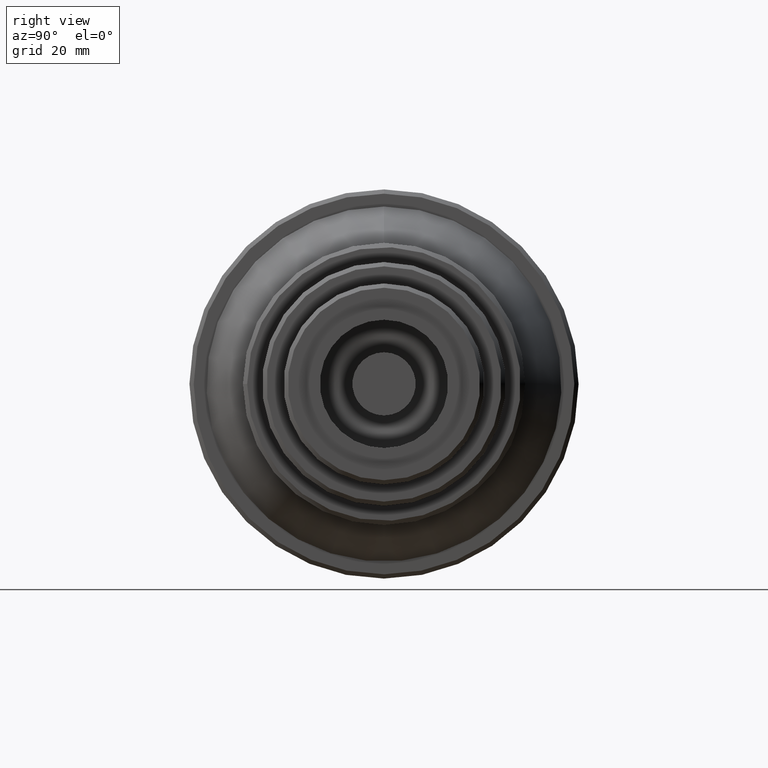
[diagram: clean part render]
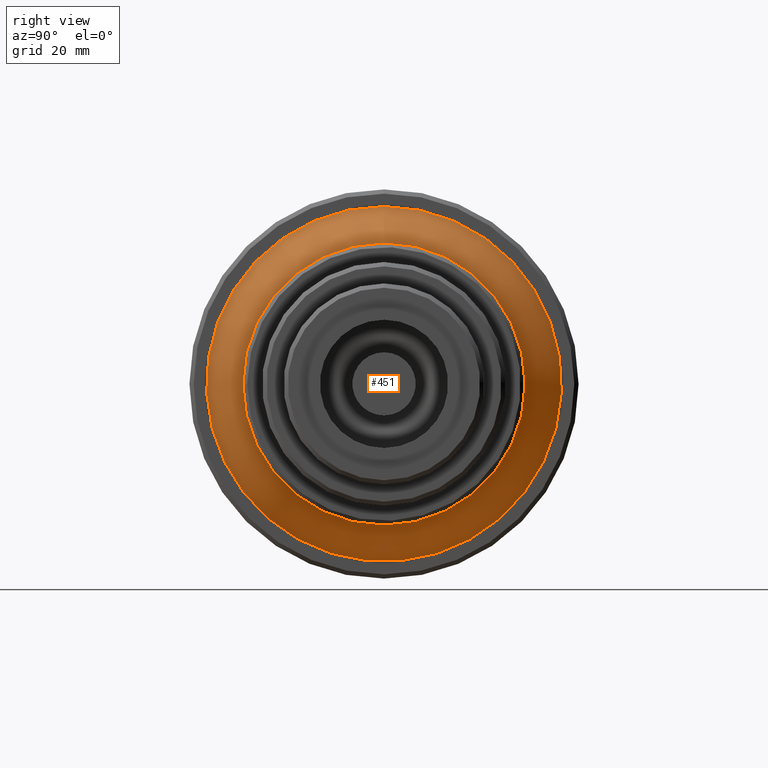
[diagram: same view with one face highlighted and labeled with its STEP entity id]
A machine part, right view. The second image highlights one B-rep face of the part: STEP entity #451.
In plain terms, the highlighted conical surface has half-angle 22.575 deg.
Its self-contained STEP definition (entity closure, byte-faithful):
#19 = CARTESIAN_POINT ( 'NONE',  ( 35.49999999999989342, 0.000000000000000000, 0.000000000000000000 ) ) ;
#58 = ORIENTED_EDGE ( 'NONE', *, *, #153, .T. ) ;
#153 = EDGE_CURVE ( 'NONE', #602, #602, #637, .T. ) ;
#178 = VERTEX_POINT ( 'NONE', #773 ) ;
#210 = CARTESIAN_POINT ( 'NONE',  ( 15.05457499999991455, 0.000000000000000000, 0.000000000000000000 ) ) ;
#244 = DIRECTION ( 'NONE',  ( -1.000000000000000000, 0.000000000000000000, 0.000000000000000000 ) ) ;
#278 = DIRECTION ( 'NONE',  ( 2.102695122396129916E-16, 0.000000000000000000, 1.000000000000000000 ) ) ;
#300 = FACE_BOUND ( 'NONE', #355, .T. ) ;
#311 = EDGE_CURVE ( 'NONE', #178, #178, #755, .T. ) ;
#335 = AXIS2_PLACEMENT_3D ( 'NONE', #19, #663, #278 ) ;
#338 = ORIENTED_EDGE ( 'NONE', *, *, #311, .T. ) ;
#355 = EDGE_LOOP ( 'NONE', ( #338 ) ) ;
#408 = DIRECTION ( 'NONE',  ( 0.000000000000000000, 0.000000000000000000, 1.000000000000000000 ) ) ;
#451 = ADVANCED_FACE ( 'NONE', ( #300, #567 ), #530, .T. ) ;
#514 = DIRECTION ( 'NONE',  ( 0.000000000000000000, 0.000000000000000000, 1.000000000000000000 ) ) ;
#530 = CONICAL_SURFACE ( 'NONE', #797, 41.49999999999611333, 0.3940020670012432946 ) ;
#551 = AXIS2_PLACEMENT_3D ( 'NONE', #210, #674, #408 ) ;
#567 = FACE_OUTER_BOUND ( 'NONE', #624, .T. ) ;
#602 = VERTEX_POINT ( 'NONE', #673 ) ;
#624 = EDGE_LOOP ( 'NONE', ( #58 ) ) ;
#637 = CIRCLE ( 'NONE', #551, 41.49999999999611333 ) ;
#663 = DIRECTION ( 'NONE',  ( -1.000000000000000000, -0.000000000000000000, -0.000000000000000000 ) ) ;
#673 = CARTESIAN_POINT ( 'NONE',  ( 15.05457499999991455, 0.000000000000000000, 41.49999999999611333 ) ) ;
#674 = DIRECTION ( 'NONE',  ( 1.000000000000000000, -0.000000000000000000, -0.000000000000000000 ) ) ;
#755 = CIRCLE ( 'NONE', #335, 33.00000000000000000 ) ;
#773 = CARTESIAN_POINT ( 'NONE',  ( 35.49999999999990052, 0.000000000000000000, 33.00000000000000000 ) ) ;
#797 = AXIS2_PLACEMENT_3D ( 'NONE', #838, #244, #514 ) ;
#838 = CARTESIAN_POINT ( 'NONE',  ( 15.05457499999991455, 0.000000000000000000, 0.000000000000000000 ) ) ;